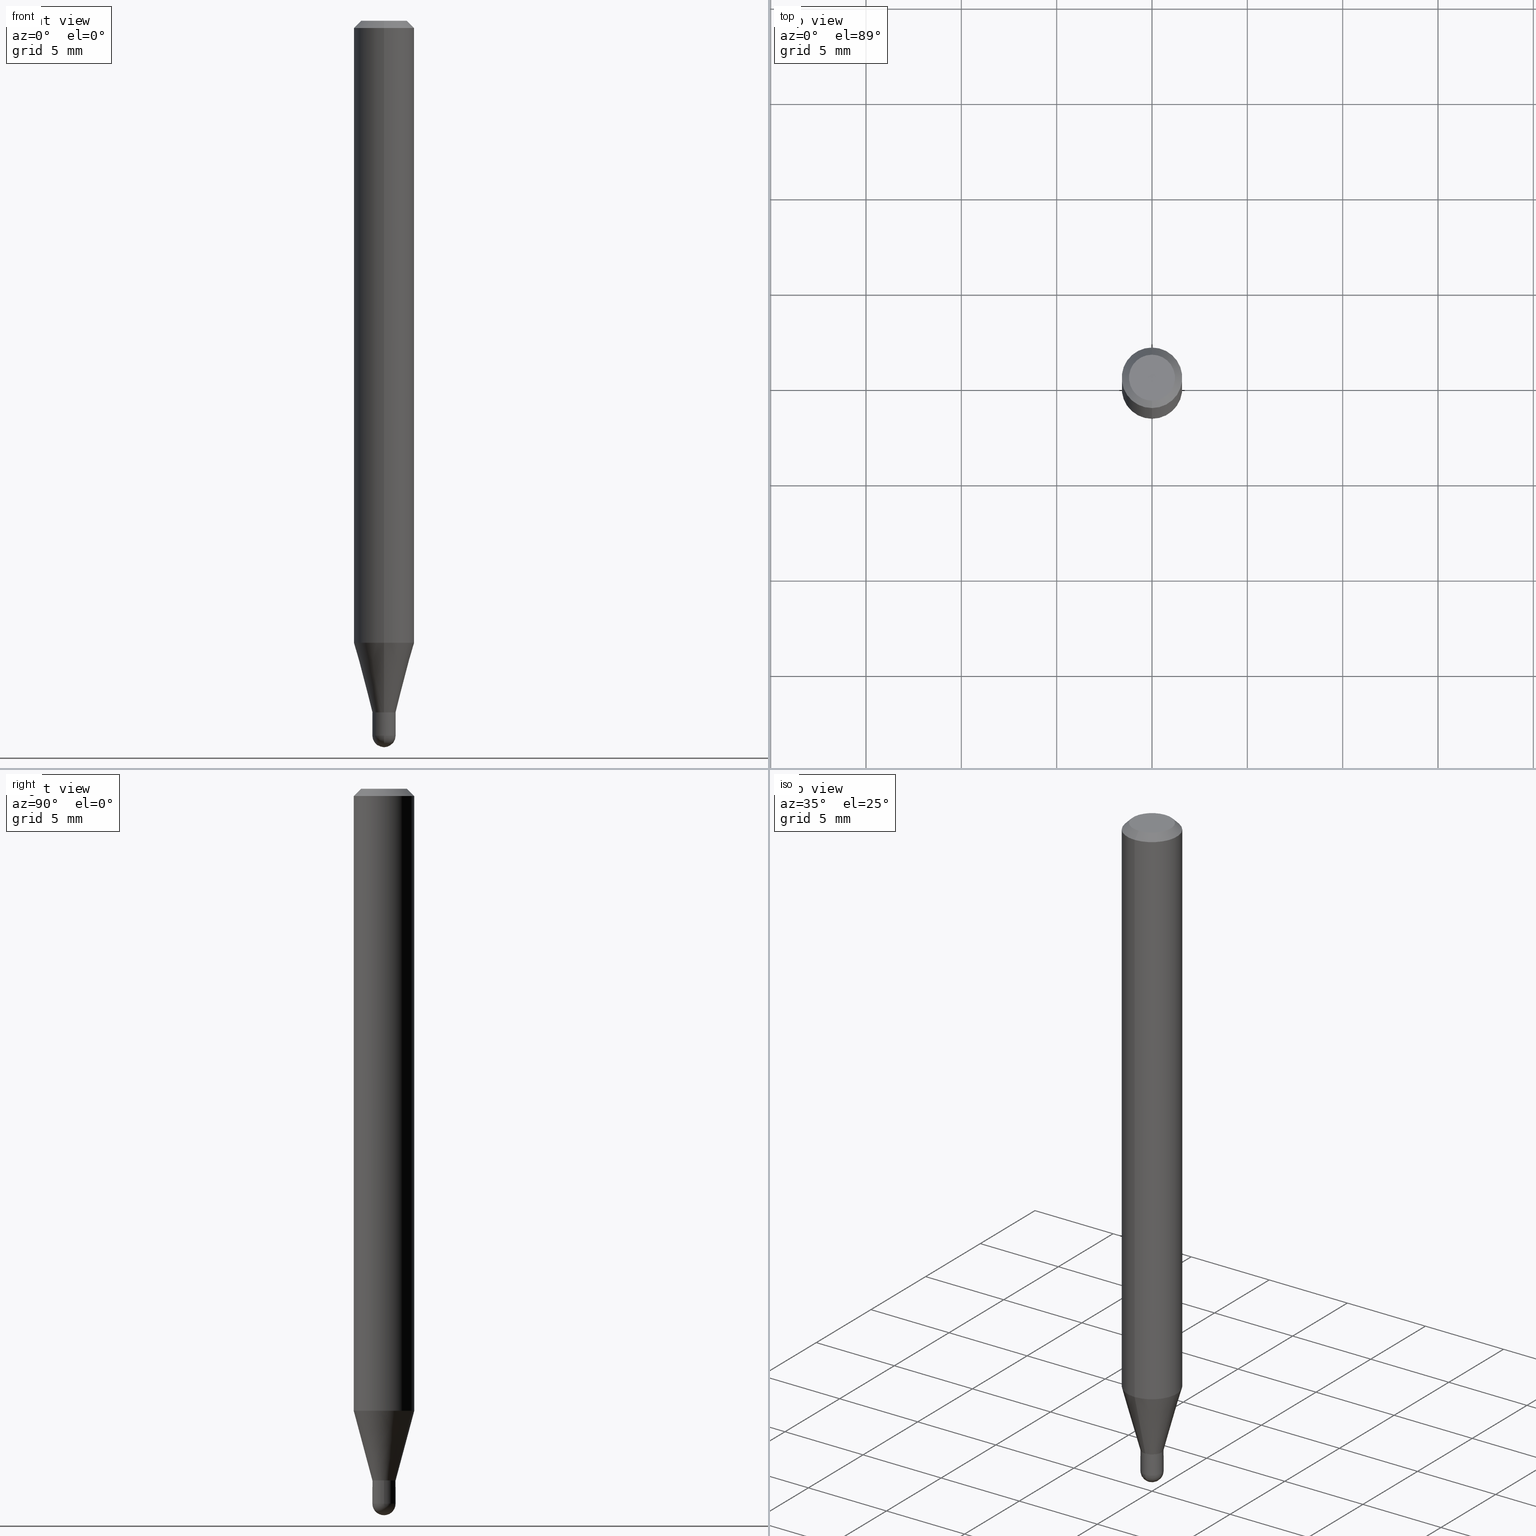
[diagram: canonical four-view strip — front | top / right | iso, engineering-drawing reading convention]
A machine part, canonical four-view strip (front | top / right | iso — engineering-drawing reading convention). The complete STEP part file that produces these views, byte-faithful:
ISO-10303-21;
HEADER;
FILE_DESCRIPTION (( 'STEP AP203' ),
    '1' );
FILE_NAME ('01405.STEP',
    '2024-03-07T20:26:45',
    ( '' ),
    ( '' ),
    'SwSTEP 2.0',
    'SolidWorks 2023',
    '' );
FILE_SCHEMA (( 'CONFIG_CONTROL_DESIGN' ));
ENDSEC;

DATA;
#1 = CARTESIAN_POINT ( 'NONE',  ( -1.640996229255922955E-16, -0.02350000000000497871, -1.428000000000000158 ) ) ;
#2 = DIRECTION ( 'NONE',  ( -2.445464073693033846E-29, 3.491488116041193257E-15, 1.000000000000000000 ) ) ;
#3 = EDGE_CURVE ( 'NONE', #487, #257, #172, .T. ) ;
#4 = DIRECTION ( 'NONE',  ( -6.982962677686265922E-15, -1.000000000000000000, 0.000000000000000000 ) ) ;
#5 = AXIS2_PLACEMENT_3D ( 'NONE', #389, #2, #161 ) ;
#6 = DIRECTION ( 'NONE',  ( 1.000000000000000000, -6.982962677686266711E-15, 4.876176775795935232E-29 ) ) ;
#7 = DIRECTION ( 'NONE',  ( -2.445468806185136877E-29, 3.491481338843145188E-15, 1.000000000000000000 ) ) ;
#8 = EDGE_CURVE ( 'NONE', #179, #99, #484, .T. ) ;
#9 = CARTESIAN_POINT ( 'NONE',  ( -0.02400000000000000397, 1.705302565824240728E-16, -1.180544421661177751E-30 ) ) ;
#10 = DIRECTION ( 'NONE',  ( -4.851104656540964275E-15, -0.7071067811865500152, -0.7071067811865450192 ) ) ;
#11 = DIRECTION ( 'NONE',  ( -6.982962677686265922E-15, -1.000000000000000000, 0.000000000000000000 ) ) ;
#12 = ORIENTED_EDGE ( 'NONE', *, *, #135, .T. ) ;
#13 = CARTESIAN_POINT ( 'NONE',  ( 1.705302565824577720E-16, 0.02399999999999485531, -1.427500000000000213 ) ) ;
#14 = AXIS2_PLACEMENT_3D ( 'NONE', #326, #208, #362 ) ;
#15 = DIRECTION ( 'NONE',  ( 1.000000000000000000, -6.982962677686250144E-15, 0.000000000000000000 ) ) ;
#16 = ORIENTED_EDGE ( 'NONE', *, *, #184, .T. ) ;
#17 = FACE_OUTER_BOUND ( 'NONE', #182, .T. ) ;
#18 = CARTESIAN_POINT ( 'NONE',  ( 3.492122697233653173E-29, -4.985845029706825030E-15, -1.428000000000000158 ) ) ;
#19 = ORIENTED_EDGE ( 'NONE', *, *, #357, .F. ) ;
#20 = CC_DESIGN_PERSON_AND_ORGANIZATION_ASSIGNMENT ( #337, #114, ( #431 ) ) ;
#21 = ADVANCED_FACE ( 'NONE', ( #456 ), #491, .T. ) ;
#22 = LINE ( 'NONE', #289, #33 ) ;
#23 = ORIENTED_EDGE ( 'NONE', *, *, #281, .F. ) ;
#24 = VECTOR ( 'NONE', #313, 39.37007874015748143 ) ;
#25 = VECTOR ( 'NONE', #7, 39.37007874015748143 ) ;
#26 = EDGE_LOOP ( 'NONE', ( #295, #449, #115, #61 ) ) ;
#27 = CALENDAR_DATE ( 2024, 7, 3 ) ;
#28 = DIRECTION ( 'NONE',  ( 1.000000000000000000, -7.105427357601001070E-15, 4.926315508542082329E-29 ) ) ;
#29 = COORDINATED_UNIVERSAL_TIME_OFFSET ( 5, 0, .BEHIND. ) ;
#30 = DIRECTION ( 'NONE',  ( -2.445464073693033846E-29, 3.491488116041193257E-15, 1.000000000000000000 ) ) ;
#31 = LENGTH_MEASURE_WITH_UNIT ( LENGTH_MEASURE( 0.02539999999999999897 ), #294 );
#32 = ORIENTED_EDGE ( 'NONE', *, *, #277, .F. ) ;
#33 = VECTOR ( 'NONE', #10, 39.37007874015748143 ) ;
#34 = AXIS2_PLACEMENT_3D ( 'NONE', #91, #276, #240 ) ;
#35 = CALENDAR_DATE ( 2024, 7, 3 ) ;
#36 = DIRECTION ( 'NONE',  ( -6.982962677686266711E-15, -1.000000000000000000, 0.000000000000000000 ) ) ;
#37 = CARTESIAN_POINT ( 'NONE',  ( 3.607459558835231439E-29, -5.156365608450436393E-15, -1.475999999999999979 ) ) ;
#38 = CARTESIAN_POINT ( 'NONE',  ( 3.840629472727447874E-16, 0.04749999999999999362, -1.747056831868805136E-16 ) ) ;
#39 = DIRECTION ( 'NONE',  ( -2.445464073693033846E-29, 3.491488116041193257E-15, 1.000000000000000000 ) ) ;
#40 = CIRCLE ( 'NONE', #503, 0.02400000000000000050 ) ;
#41 = APPROVAL_STATUS ( 'not_yet_approved' ) ;
#42 = LINE ( 'NONE', #118, #325 ) ;
#43 = CC_DESIGN_DATE_AND_TIME_ASSIGNMENT ( #194, #390, ( #492 ) ) ;
#44 = CONICAL_SURFACE ( 'NONE', #186, 0.06250000000000000000, 0.7853981633974483900 ) ;
#45 = FACE_OUTER_BOUND ( 'NONE', #307, .T. ) ;
#46 = UNCERTAINTY_MEASURE_WITH_UNIT (LENGTH_MEASURE( 1.000000000000000082E-05 ), #70, 'distance_accuracy_value', 'NONE');
#47 = DIRECTION ( 'NONE',  ( -2.445468806185136597E-29, 3.491481338843145583E-15, 1.000000000000000000 ) ) ;
#48 = EDGE_CURVE ( 'NONE', #323, #79, #414, .T. ) ;
#49 = AXIS2_PLACEMENT_3D ( 'NONE', #37, #28, #499 ) ;
#50 = LOCAL_TIME ( 15, 26, 45.00000000000000000, #474 ) ;
#51 = DIRECTION ( 'NONE',  ( -2.445464073693033846E-29, 3.491488116041193257E-15, 1.000000000000000000 ) ) ;
#52 = CARTESIAN_POINT ( 'NONE',  ( 3.316907271900976096E-16, 0.04749999999999999362, -1.702756843494185878E-16 ) ) ;
#53 = ORIENTED_EDGE ( 'NONE', *, *, #334, .T. ) ;
#54 = LINE ( 'NONE', #441, #283 ) ;
#55 = ORIENTED_EDGE ( 'NONE', *, *, #184, .F. ) ;
#56 = AXIS2_PLACEMENT_3D ( 'NONE', #116, #495, #339 ) ;
#57 = AXIS2_PLACEMENT_3D ( 'NONE', #18, #103, #11 ) ;
#58 = AXIS2_PLACEMENT_3D ( 'NONE', #80, #90, #4 ) ;
#59 = VERTEX_POINT ( 'NONE', #304 ) ;
#60 = CARTESIAN_POINT ( 'NONE',  ( 0.02400000000000000050, -5.153426456132482850E-15, -1.428000000000000158 ) ) ;
#61 = ORIENTED_EDGE ( 'NONE', *, *, #296, .F. ) ;
#62 = EDGE_CURVE ( 'NONE', #485, #59, #219, .T. ) ;
#63 = CARTESIAN_POINT ( 'NONE',  ( 3.492129455232375114E-29, -4.985835351868012196E-15, -1.428000000000000158 ) ) ;
#64 = DIRECTION ( 'NONE',  ( -2.445468806185136597E-29, 3.491481338843145583E-15, 1.000000000000000000 ) ) ;
#65 = ORIENTED_EDGE ( 'NONE', *, *, #448, .F. ) ;
#66 = MECHANICAL_CONTEXT ( 'NONE', #345, 'mechanical' ) ;
#67 = APPROVAL ( #378, 'UNSPECIFIED' ) ;
#68 = CLOSED_SHELL ( 'NONE', ( #247, #131, #83, #243, #263 ) ) ;
#69 = EDGE_LOOP ( 'NONE', ( #157, #128, #446, #139, #412 ) ) ;
#70 =( CONVERSION_BASED_UNIT ( 'INCH', #31 ) LENGTH_UNIT ( ) NAMED_UNIT ( #321 ) );
#71 = EDGE_CURVE ( 'NONE', #335, #99, #458, .T. ) ;
#72 = CARTESIAN_POINT ( 'NONE',  ( 1.705302565824607055E-16, 0.02399999999999493164, -1.475999999999999979 ) ) ;
#73 = SECURITY_CLASSIFICATION_LEVEL ( 'unclassified' ) ;
#74 = VERTEX_POINT ( 'NONE', #78 ) ;
#75 = ORIENTED_EDGE ( 'NONE', *, *, #108, .F. ) ;
#76 = AXIS2_PLACEMENT_3D ( 'NONE', #396, #47, #6 ) ;
#77 = CIRCLE ( 'NONE', #494, 0.02400000000000000397 ) ;
#78 = CARTESIAN_POINT ( 'NONE',  ( 4.440892098500941706E-16, 0.06249999999999995143, -0.01500000000000022669 ) ) ;
#79 = VERTEX_POINT ( 'NONE', #425 ) ;
#80 = CARTESIAN_POINT ( 'NONE',  ( 3.607459558835231439E-29, -5.156365608450436393E-15, -1.475999999999999979 ) ) ;
#81 = APPROVAL_ROLE ( '' ) ;
#82 = CARTESIAN_POINT ( 'NONE',  ( 3.073097332162762918E-16, 0.02399999999999493164, -1.428000000000000158 ) ) ;
#83 = ADVANCED_FACE ( 'NONE', ( #346 ), #510, .F. ) ;
#84 = CARTESIAN_POINT ( 'NONE',  ( 3.492122697233653173E-29, -4.985845029706825030E-15, -1.428000000000000158 ) ) ;
#85 = CIRCLE ( 'NONE', #56, 0.06250000000000000000 ) ;
#86 = CIRCLE ( 'NONE', #300, 0.04749999999999999362 ) ;
#87 = DIRECTION ( 'NONE',  ( -2.445464073693033846E-29, 3.491488116041193651E-15, 1.000000000000000000 ) ) ;
#88 = ADVANCED_FACE ( 'NONE', ( #309 ), #418, .F. ) ;
#89 = CARTESIAN_POINT ( 'NONE',  ( -4.364351673553916201E-16, -0.06250000000000000000, 2.182180072525745786E-16 ) ) ;
#90 = DIRECTION ( 'NONE',  ( 1.000000000000000000, -6.982962677686265922E-15, 4.883557194083111780E-29 ) ) ;
#91 = CARTESIAN_POINT ( 'NONE',  ( 3.607459558835231439E-29, -5.156365608450436393E-15, -1.475999999999999979 ) ) ;
#92 = ORIENTED_EDGE ( 'NONE', *, *, #281, .T. ) ;
#93 = CIRCLE ( 'NONE', #422, 0.02400000000000000397 ) ;
#94 = CYLINDRICAL_SURFACE ( 'NONE', #398, 0.02400000000000000397 ) ;
#95 = EDGE_CURVE ( 'NONE', #107, #493, #259, .T. ) ;
#96 = DIRECTION ( 'NONE',  ( -6.982962677686265922E-15, -1.000000000000000000, 3.491488116041193257E-15 ) ) ;
#97 = ORIENTED_EDGE ( 'NONE', *, *, #150, .F. ) ;
#98 = DIRECTION ( 'NONE',  ( -6.982962677686265922E-15, -1.000000000000000000, 0.000000000000000000 ) ) ;
#99 = VERTEX_POINT ( 'NONE', #72 ) ;
#100 = CONICAL_SURFACE ( 'NONE', #400, 0.02399999999999991723, 0.2617993877991579010 ) ;
#101 = DIRECTION ( 'NONE',  ( -2.445468806185136597E-29, 3.491481338843145583E-15, 1.000000000000000000 ) ) ;
#102 = EDGE_LOOP ( 'NONE', ( #212, #53, #143, #117 ) ) ;
#103 = DIRECTION ( 'NONE',  ( -2.445464073693033846E-29, 3.491488116041193257E-15, 1.000000000000000000 ) ) ;
#104 = PERSON ( 'UNSPECIFIED', 'UNSPECIFIED', 'UNSPECIFIED', ('UNSPECIFIED'), ('UNSPECIFIED'), ('UNSPECIFIED') ) ;
#105 = EDGE_LOOP ( 'NONE', ( #375, #12, #191, #379 ) ) ;
#106 = EDGE_CURVE ( 'NONE', #59, #485, #199, .T. ) ;
#107 = VERTEX_POINT ( 'NONE', #1 ) ;
#108 = EDGE_CURVE ( 'NONE', #310, #508, #86, .T. ) ;
#109 = APPROVAL_ROLE ( '' ) ;
#110 = AXIS2_PLACEMENT_3D ( 'NONE', #151, #465, #298 ) ;
#111 = CARTESIAN_POINT ( 'NONE',  ( 3.492122697233653173E-29, -4.985845029706825030E-15, -1.428000000000000158 ) ) ;
#112 = COORDINATED_UNIVERSAL_TIME_OFFSET ( 5, 0, .BEHIND. ) ;
#113 = CARTESIAN_POINT ( 'NONE',  ( 3.490899965196806411E-29, -4.984099285648804176E-15, -1.427500000000000213 ) ) ;
#114 = PERSON_AND_ORGANIZATION_ROLE ( 'design_owner' ) ;
#115 = ORIENTED_EDGE ( 'NONE', *, *, #511, .T. ) ;
#116 = CARTESIAN_POINT ( 'NONE',  ( 3.668196110539553397E-31, -5.237232174061793509E-17, -0.01500000000000000812 ) ) ;
#117 = ORIENTED_EDGE ( 'NONE', *, *, #349, .F. ) ;
#118 = CARTESIAN_POINT ( 'NONE',  ( -1.640996229255922955E-16, -0.02350000000000497871, -1.428000000000000158 ) ) ;
#119 = DIRECTION ( 'NONE',  ( -2.445464073693033846E-29, 3.491488116041193257E-15, 1.000000000000000000 ) ) ;
#120 = CALENDAR_DATE ( 2024, 7, 3 ) ;
#121 = CARTESIAN_POINT ( 'NONE',  ( -0.02400000000000000397, -4.899100647417823327E-15, -1.475999999999999979 ) ) ;
#122 = DIRECTION ( 'NONE',  ( 2.445464073693033286E-29, -3.491488116041193651E-15, -1.000000000000000000 ) ) ;
#123 = CC_DESIGN_APPROVAL ( #336, ( #141 ) ) ;
#124 = AXIS2_PLACEMENT_3D ( 'NONE', #205, #280, #235 ) ;
#125 = CYLINDRICAL_SURFACE ( 'NONE', #76, 0.02400000000000000397 ) ;
#126 = DIRECTION ( 'NONE',  ( -2.445464073693033846E-29, 3.491488116041193257E-15, 1.000000000000000000 ) ) ;
#127 = DIRECTION ( 'NONE',  ( -6.982962677686266711E-15, -1.000000000000000000, 3.491488116041193257E-15 ) ) ;
#128 = ORIENTED_EDGE ( 'NONE', *, *, #150, .T. ) ;
#129 = DIRECTION ( 'NONE',  ( -6.982962677686266711E-15, -1.000000000000000000, 3.491488116041193257E-15 ) ) ;
#130 = ORIENTED_EDGE ( 'NONE', *, *, #386, .F. ) ;
#131 = ADVANCED_FACE ( 'NONE', ( #167 ), #432, .T. ) ;
#132 = CARTESIAN_POINT ( 'NONE',  ( 3.609511957929261635E-29, -5.153426456132482850E-15, -1.475999999999999979 ) ) ;
#133 = ORIENTED_EDGE ( 'NONE', *, *, #448, .T. ) ;
#134 = AXIS2_PLACEMENT_3D ( 'NONE', #168, #39, #399 ) ;
#135 = EDGE_CURVE ( 'NONE', #323, #485, #282, .T. ) ;
#136 = ORIENTED_EDGE ( 'NONE', *, *, #506, .T. ) ;
#137 = ORIENTED_EDGE ( 'NONE', *, *, #462, .T. ) ;
#138 = DATE_AND_TIME ( #35, #384 ) ;
#139 = ORIENTED_EDGE ( 'NONE', *, *, #462, .F. ) ;
#140 = EDGE_CURVE ( 'NONE', #79, #253, #164, .T. ) ;
#141 = PRODUCT_DEFINITION_FORMATION_WITH_SPECIFIED_SOURCE ( 'ANY', '', #431, .NOT_KNOWN. ) ;
#142 = AXIS2_PLACEMENT_3D ( 'NONE', #84, #394, #311 ) ;
#143 = ORIENTED_EDGE ( 'NONE', *, *, #511, .F. ) ;
#144 = PERSON_AND_ORGANIZATION ( #104, #376 ) ;
#145 = CC_DESIGN_PERSON_AND_ORGANIZATION_ASSIGNMENT ( #144, #505, ( #492 ) ) ;
#146 = DIRECTION ( 'NONE',  ( -2.445468806185136597E-29, 3.491481338843145583E-15, 1.000000000000000000 ) ) ;
#147 = APPLICATION_CONTEXT ( 'configuration controlled 3d designs of mechanical parts and assemblies' ) ;
#148 =( NAMED_UNIT ( * ) SI_UNIT ( $, .STERADIAN. ) SOLID_ANGLE_UNIT ( ) );
#149 = VECTOR ( 'NONE', #236, 39.37007874015748143 ) ;
#150 = EDGE_CURVE ( 'NONE', #368, #257, #353, .T. ) ;
#151 = CARTESIAN_POINT ( 'NONE',  ( 3.492122697233653173E-29, -4.985845029706825030E-15, -1.428000000000000158 ) ) ;
#152 = SHAPE_DEFINITION_REPRESENTATION ( #163, #417 ) ;
#153 = DIRECTION ( 'NONE',  ( 2.438088387897960049E-29, -3.491481338843145188E-15, -1.000000000000000000 ) ) ;
#154 = CIRCLE ( 'NONE', #14, 0.02349999999999999312 ) ;
#155 = AXIS2_PLACEMENT_3D ( 'NONE', #305, #146, #267 ) ;
#156 = PRODUCT_DEFINITION ( 'UNKNOWN', '', #141, #469 ) ;
#157 = ORIENTED_EDGE ( 'NONE', *, *, #268, .T. ) ;
#158 = CARTESIAN_POINT ( 'NONE',  ( 3.140748744646054183E-29, -4.484174204547925592E-15, -1.284316043908602989 ) ) ;
#159 = CARTESIAN_POINT ( 'NONE',  ( 0.02400000000000000397, -5.237222008264717388E-15, -1.475999999999999979 ) ) ;
#160 = DATE_AND_TIME ( #426, #227 ) ;
#161 = DIRECTION ( 'NONE',  ( -6.982962677686265922E-15, -1.000000000000000000, 3.483106191921935554E-15 ) ) ;
#162 = ADVANCED_FACE ( 'NONE', ( #272 ), #315, .F. ) ;
#163 = PRODUCT_DEFINITION_SHAPE ( 'NONE', 'NONE',  #156 ) ;
#164 = LINE ( 'NONE', #231, #203 ) ;
#165 = MANIFOLD_SOLID_BREP ( 'Body-Move/Copy2[2]', #377 ) ;
#166 = DIRECTION ( 'NONE',  ( -4.937700262164695559E-15, -0.7071067811865662245, 0.7071067811865289210 ) ) ;
#167 = FACE_OUTER_BOUND ( 'NONE', #290, .T. ) ;
#168 = CARTESIAN_POINT ( 'NONE',  ( 2.166680600703005880E-46, -3.093457659014917568E-32, -8.859997674923836270E-18 ) ) ;
#169 = CYLINDRICAL_SURFACE ( 'NONE', #299, 0.02399999999999991723 ) ;
#170 = ORIENTED_EDGE ( 'NONE', *, *, #8, .F. ) ;
#171 = VECTOR ( 'NONE', #206, 39.37007874015748143 ) ;
#172 = CIRCLE ( 'NONE', #284, 0.02400000000000000050 ) ;
#173 = DIRECTION ( 'NONE',  ( -2.445464073693033846E-29, 3.491488116041193257E-15, 1.000000000000000000 ) ) ;
#174 = CARTESIAN_POINT ( 'NONE',  ( 3.609511957929261635E-29, -5.153426456132482850E-15, -1.475999999999999979 ) ) ;
#175 = EDGE_LOOP ( 'NONE', ( #209, #301, #23, #471 ) ) ;
#176 = DIRECTION ( 'NONE',  ( -2.445464073693033846E-29, 3.491488116041193257E-15, 1.000000000000000000 ) ) ;
#177 = EDGE_LOOP ( 'NONE', ( #373, #401, #248, #454 ) ) ;
#178 = MANIFOLD_SOLID_BREP ( 'Body-Move/Copy2[1]', #68 ) ;
#179 = VERTEX_POINT ( 'NONE', #159 ) ;
#180 = CARTESIAN_POINT ( 'NONE',  ( 0.000000000000000000, 0.000000000000000000, 0.000000000000000000 ) ) ;
#181 = CIRCLE ( 'NONE', #322, 0.02400000000000017397 ) ;
#182 = EDGE_LOOP ( 'NONE', ( #197, #136, #424, #196 ) ) ;
#183 = DATE_AND_TIME ( #27, #266 ) ;
#184 = EDGE_CURVE ( 'NONE', #74, #330, #250, .T. ) ;
#185 = DIRECTION ( 'NONE',  ( -2.445464073693033846E-29, 3.491488116041193257E-15, 1.000000000000000000 ) ) ;
#186 = AXIS2_PLACEMENT_3D ( 'NONE', #360, #351, #388 ) ;
#187 = PERSON_AND_ORGANIZATION_ROLE ( 'creator' ) ;
#188 = VERTEX_POINT ( 'NONE', #430 ) ;
#189 =( NAMED_UNIT ( * ) PLANE_ANGLE_UNIT ( ) SI_UNIT ( $, .RADIAN. ) );
#190 = AXIS2_PLACEMENT_3D ( 'NONE', #113, #385, #36 ) ;
#191 = ORIENTED_EDGE ( 'NONE', *, *, #62, .T. ) ;
#192 = APPROVAL_DATE_TIME ( #183, #67 ) ;
#193 = ORIENTED_EDGE ( 'NONE', *, *, #48, .T. ) ;
#194 = DATE_AND_TIME ( #120, #50 ) ;
#195 = ADVANCED_FACE ( 'NONE', ( #359 ), #344, .T. ) ;
#196 = ORIENTED_EDGE ( 'NONE', *, *, #140, .F. ) ;
#197 = ORIENTED_EDGE ( 'NONE', *, *, #204, .T. ) ;
#198 = DIRECTION ( 'NONE',  ( -2.445464073693033846E-29, 3.491488116041193257E-15, 1.000000000000000000 ) ) ;
#199 = CIRCLE ( 'NONE', #331, 0.02399999999999992070 ) ;
#200 = DIRECTION ( 'NONE',  ( -2.445464073693033846E-29, 3.491488116041193651E-15, 1.000000000000000000 ) ) ;
#201 = FACE_OUTER_BOUND ( 'NONE', #175, .T. ) ;
#202 = FACE_OUTER_BOUND ( 'NONE', #69, .T. ) ;
#203 = VECTOR ( 'NONE', #361, 39.37007874015748854 ) ;
#204 = EDGE_CURVE ( 'NONE', #79, #323, #407, .T. ) ;
#205 = CARTESIAN_POINT ( 'NONE',  ( 3.492122697233653173E-29, -4.985845029706825030E-15, -1.428000000000000158 ) ) ;
#206 = DIRECTION ( 'NONE',  ( -2.445464073693033846E-29, 3.491488116041193651E-15, 1.000000000000000000 ) ) ;
#207 = APPROVAL ( #41, 'UNSPECIFIED' ) ;
#208 = DIRECTION ( 'NONE',  ( -2.445464073693033846E-29, 3.491488116041193257E-15, 1.000000000000000000 ) ) ;
#209 = ORIENTED_EDGE ( 'NONE', *, *, #71, .F. ) ;
#210 = APPROVAL_PERSON_ORGANIZATION ( #509, #207, #81 ) ;
#211 = CARTESIAN_POINT ( 'NONE',  ( -1.675911042644698153E-16, -0.02399999999999991723, 8.379571478498835102E-17 ) ) ;
#212 = ORIENTED_EDGE ( 'NONE', *, *, #374, .T. ) ;
#213 = DIRECTION ( 'NONE',  ( -6.982962677686266711E-15, -1.000000000000000000, 0.000000000000000000 ) ) ;
#214 = VERTEX_POINT ( 'NONE', #395 ) ;
#215 = CARTESIAN_POINT ( 'NONE',  ( 3.492122697233653173E-29, -4.985845029706825030E-15, -1.428000000000000158 ) ) ;
#216 = ORIENTED_EDGE ( 'NONE', *, *, #95, .F. ) ;
#217 =( GEOMETRIC_REPRESENTATION_CONTEXT ( 3 ) GLOBAL_UNCERTAINTY_ASSIGNED_CONTEXT ( ( #46 ) ) GLOBAL_UNIT_ASSIGNED_CONTEXT ( ( #70, #189, #148 ) ) REPRESENTATION_CONTEXT ( 'NONE', 'WORKASPACE' ) );
#218 = PERSON_AND_ORGANIZATION ( #104, #376 ) ;
#219 = CIRCLE ( 'NONE', #190, 0.02399999999999992070 ) ;
#220 = EDGE_CURVE ( 'NONE', #508, #310, #476, .T. ) ;
#221 = CARTESIAN_POINT ( 'NONE',  ( 3.492122697233653173E-29, -4.985845029706825030E-15, -1.428000000000000158 ) ) ;
#222 = APPROVAL_DATE_TIME ( #415, #336 ) ;
#223 = CARTESIAN_POINT ( 'NONE',  ( 3.490899965196806411E-29, -4.984099285648804176E-15, -1.427500000000000213 ) ) ;
#224 = CARTESIAN_POINT ( 'NONE',  ( 3.492122697233653173E-29, -4.985845029706825030E-15, -1.428000000000000158 ) ) ;
#225 = ADVANCED_FACE ( 'NONE', ( #45 ), #479, .T. ) ;
#226 = PERSON_AND_ORGANIZATION_ROLE ( 'creator' ) ;
#227 = LOCAL_TIME ( 15, 26, 45.00000000000000000, #271 ) ;
#228 = ORIENTED_EDGE ( 'NONE', *, *, #334, .F. ) ;
#229 = ORIENTED_EDGE ( 'NONE', *, *, #306, .F. ) ;
#230 = ORIENTED_EDGE ( 'NONE', *, *, #277, .T. ) ;
#231 = CARTESIAN_POINT ( 'NONE',  ( -1.675911042644348836E-16, -0.02400000000000490283, -1.428000000000000158 ) ) ;
#232 = APPROVAL_DATE_TIME ( #160, #207 ) ;
#233 = FACE_OUTER_BOUND ( 'NONE', #105, .T. ) ;
#234 = VECTOR ( 'NONE', #314, 39.37007874015748143 ) ;
#235 = DIRECTION ( 'NONE',  ( -6.982962677686266711E-15, -1.000000000000000000, 0.000000000000000000 ) ) ;
#236 = DIRECTION ( 'NONE',  ( -2.445464073693033846E-29, 3.491488116041193651E-15, 1.000000000000000000 ) ) ;
#237 = DIRECTION ( 'NONE',  ( 6.982962677686265922E-15, 1.000000000000000000, -3.491488116041193651E-15 ) ) ;
#238 = AXIS2_PLACEMENT_3D ( 'NONE', #158, #126, #472 ) ;
#239 = DIRECTION ( 'NONE',  ( -2.445464073693033846E-29, 3.491488116041193257E-15, 1.000000000000000000 ) ) ;
#240 = DIRECTION ( 'NONE',  ( -6.982962677686265922E-15, -1.000000000000000000, 0.000000000000000000 ) ) ;
#241 = DIRECTION ( 'NONE',  ( 1.000000000000000000, -6.982962677686266711E-15, 4.876176775795935232E-29 ) ) ;
#242 = DIRECTION ( 'NONE',  ( 5.024295867788211484E-15, 0.7071067811865709984, 0.7071067811865239250 ) ) ;
#243 = ADVANCED_FACE ( 'NONE', ( #201 ), #435, .T. ) ;
#244 = ORIENTED_EDGE ( 'NONE', *, *, #349, .T. ) ;
#245 = DIRECTION ( 'NONE',  ( 1.000000000000000000, -6.982962677686251722E-15, 0.000000000000000000 ) ) ;
#246 = FACE_OUTER_BOUND ( 'NONE', #255, .T. ) ;
#247 = ADVANCED_FACE ( 'NONE', ( #202 ), #125, .T. ) ;
#248 = ORIENTED_EDGE ( 'NONE', *, *, #402, .T. ) ;
#249 = CC_DESIGN_SECURITY_CLASSIFICATION ( #492, ( #141 ) ) ;
#250 = CIRCLE ( 'NONE', #5, 0.06250000000000000000 ) ;
#251 = CARTESIAN_POINT ( 'NONE',  ( 3.607459558835231439E-29, -5.156365608450436393E-15, -1.475999999999999979 ) ) ;
#252 = DIRECTION ( 'NONE',  ( 1.000000000000000000, -6.982962677686250144E-15, 0.000000000000000000 ) ) ;
#253 = VERTEX_POINT ( 'NONE', #319 ) ;
#254 = CARTESIAN_POINT ( 'NONE',  ( 4.364351673553919652E-16, 0.06249999999999995143, -0.01500000000000022669 ) ) ;
#255 = EDGE_LOOP ( 'NONE', ( #97, #92, #230, #137, #338 ) ) ;
#256 = LINE ( 'NONE', #423, #428 ) ;
#257 = VERTEX_POINT ( 'NONE', #445 ) ;
#258 = LOCAL_TIME ( 15, 26, 45.00000000000000000, #112 ) ;
#259 = CIRCLE ( 'NONE', #274, 0.02349999999999999312 ) ;
#260 = DIRECTION ( 'NONE',  ( -6.982962677686265922E-15, -1.000000000000000000, 0.000000000000000000 ) ) ;
#261 = PERSON_AND_ORGANIZATION ( #104, #376 ) ;
#262 = CALENDAR_DATE ( 2024, 7, 3 ) ;
#263 = ADVANCED_FACE ( 'NONE', ( #246 ), #94, .T. ) ;
#264 = CARTESIAN_POINT ( 'NONE',  ( 1.675911042645052894E-16, 0.02399999999999501490, -1.428000000000000158 ) ) ;
#265 = AXIS2_PLACEMENT_3D ( 'NONE', #111, #119, #507 ) ;
#266 = LOCAL_TIME ( 15, 26, 45.00000000000000000, #498 ) ;
#267 = DIRECTION ( 'NONE',  ( 1.000000000000000000, -6.982962677686250144E-15, 0.000000000000000000 ) ) ;
#268 = EDGE_CURVE ( 'NONE', #99, #368, #93, .T. ) ;
#269 = ORIENTED_EDGE ( 'NONE', *, *, #296, .T. ) ;
#270 = ADVANCED_FACE ( 'NONE', ( #363 ), #393, .T. ) ;
#271 = COORDINATED_UNIVERSAL_TIME_OFFSET ( 5, 0, .BEHIND. ) ;
#272 = FACE_OUTER_BOUND ( 'NONE', #341, .T. ) ;
#273 = AXIS2_PLACEMENT_3D ( 'NONE', #366, #285, #96 ) ;
#274 = AXIS2_PLACEMENT_3D ( 'NONE', #221, #185, #260 ) ;
#275 = FACE_OUTER_BOUND ( 'NONE', #408, .T. ) ;
#276 = DIRECTION ( 'NONE',  ( 1.000000000000000000, -6.982962677686265922E-15, 4.883557194083111780E-29 ) ) ;
#277 = EDGE_CURVE ( 'NONE', #214, #179, #466, .T. ) ;
#278 = AXIS2_PLACEMENT_3D ( 'NONE', #434, #239, #392 ) ;
#279 = CYLINDRICAL_SURFACE ( 'NONE', #278, 0.02399999999999991723 ) ;
#280 = DIRECTION ( 'NONE',  ( -2.445464073693033846E-29, 3.491488116041193257E-15, 1.000000000000000000 ) ) ;
#281 = EDGE_CURVE ( 'NONE', #368, #214, #77, .T. ) ;
#282 = LINE ( 'NONE', #482, #429 ) ;
#283 = VECTOR ( 'NONE', #242, 39.37007874015748854 ) ;
#284 = AXIS2_PLACEMENT_3D ( 'NONE', #348, #504, #387 ) ;
#285 = DIRECTION ( 'NONE',  ( -2.445464073693033846E-29, 3.491488116041193257E-15, 1.000000000000000000 ) ) ;
#286 = EDGE_LOOP ( 'NONE', ( #413, #406, #328, #229 ) ) ;
#287 = CARTESIAN_POINT ( 'NONE',  ( 3.668196110539553397E-31, -5.237232174061793509E-17, -0.01500000000000000812 ) ) ;
#288 = ORIENTED_EDGE ( 'NONE', *, *, #480, .F. ) ;
#289 = CARTESIAN_POINT ( 'NONE',  ( -4.287811248607203282E-16, -0.06250000000000005551, -0.01499999999999979128 ) ) ;
#290 = EDGE_LOOP ( 'NONE', ( #288, #365, #170, #32 ) ) ;
#291 = CC_DESIGN_APPROVAL ( #207, ( #492 ) ) ;
#292 = DIRECTION ( 'NONE',  ( 6.982962677686265922E-15, 1.000000000000000000, -3.483106191921935554E-15 ) ) ;
#293 = ORIENTED_EDGE ( 'NONE', *, *, #357, .T. ) ;
#294 =( LENGTH_UNIT ( ) NAMED_UNIT ( * ) SI_UNIT ( $, .METRE. ) );
#295 = ORIENTED_EDGE ( 'NONE', *, *, #220, .F. ) ;
#296 = EDGE_CURVE ( 'NONE', #310, #74, #451, .T. ) ;
#297 = APPROVAL_STATUS ( 'not_yet_approved' ) ;
#298 = DIRECTION ( 'NONE',  ( -6.982962677686265922E-15, -1.000000000000000000, 3.491488116041193651E-15 ) ) ;
#299 = AXIS2_PLACEMENT_3D ( 'NONE', #329, #173, #129 ) ;
#300 = AXIS2_PLACEMENT_3D ( 'NONE', #356, #475, #127 ) ;
#301 = ORIENTED_EDGE ( 'NONE', *, *, #480, .T. ) ;
#302 = APPROVAL_ROLE ( '' ) ;
#303 = ADVANCED_FACE ( 'NONE', ( #275 ), #44, .T. ) ;
#304 = CARTESIAN_POINT ( 'NONE',  ( -1.675911042644355245E-16, -0.02400000000000498956, -1.427500000000000213 ) ) ;
#305 = CARTESIAN_POINT ( 'NONE',  ( 3.609511957929261635E-29, -5.153426456132482850E-15, -1.475999999999999979 ) ) ;
#306 = EDGE_CURVE ( 'NONE', #107, #59, #42, .T. ) ;
#307 = EDGE_LOOP ( 'NONE', ( #228, #293, #244, #55 ) ) ;
#308 = DIRECTION ( 'NONE',  ( -6.982962677686265922E-15, -1.000000000000000000, 4.370956789862821150E-15 ) ) ;
#309 = FACE_OUTER_BOUND ( 'NONE', #443, .T. ) ;
#310 = VERTEX_POINT ( 'NONE', #38 ) ;
#311 = DIRECTION ( 'NONE',  ( -6.982962677686266711E-15, -1.000000000000000000, 0.000000000000000000 ) ) ;
#312 = PRODUCT_RELATED_PRODUCT_CATEGORY ( 'detail', '', ( #431 ) ) ;
#313 = DIRECTION ( 'NONE',  ( -2.445468806185136877E-29, 3.491481338843145188E-15, 1.000000000000000000 ) ) ;
#314 = DIRECTION ( 'NONE',  ( 4.937700262164548042E-15, 0.7071067811865451302, -0.7071067811865499042 ) ) ;
#315 = PLANE ( 'NONE',  #358 ) ;
#316 = AXIS2_PLACEMENT_3D ( 'NONE', #397, #51, #308 ) ;
#317 = AXIS2_PLACEMENT_3D ( 'NONE', #477, #198, #473 ) ;
#318 = CARTESIAN_POINT ( 'NONE',  ( 3.665124610636659881E-29, -5.241630736741649279E-15, -1.500000000000000222 ) ) ;
#319 = CARTESIAN_POINT ( 'NONE',  ( -4.364351673553603615E-16, -0.06250000000000449640, -1.284316043908602767 ) ) ;
#320 = CC_DESIGN_PERSON_AND_ORGANIZATION_ASSIGNMENT ( #380, #187, ( #141 ) ) ;
#321 = DIMENSIONAL_EXPONENTS ( 1.000000000000000000, 0.000000000000000000, 0.000000000000000000, 0.000000000000000000, 0.000000000000000000, 0.000000000000000000, 0.000000000000000000 ) ;
#322 = AXIS2_PLACEMENT_3D ( 'NONE', #251, #444, #98 ) ;
#323 = VERTEX_POINT ( 'NONE', #82 ) ;
#324 = CYLINDRICAL_SURFACE ( 'NONE', #273, 0.06250000000000000000 ) ;
#325 = VECTOR ( 'NONE', #166, 39.37007874015748143 ) ;
#326 = CARTESIAN_POINT ( 'NONE',  ( 3.492122697233653173E-29, -4.985845029706825030E-15, -1.428000000000000158 ) ) ;
#327 = CIRCLE ( 'NONE', #238, 0.06250000000000000000 ) ;
#328 = ORIENTED_EDGE ( 'NONE', *, *, #106, .F. ) ;
#329 = CARTESIAN_POINT ( 'NONE',  ( 0.000000000000000000, 0.000000000000000000, 0.000000000000000000 ) ) ;
#330 = VERTEX_POINT ( 'NONE', #512 ) ;
#331 = AXIS2_PLACEMENT_3D ( 'NONE', #223, #30, #355 ) ;
#332 = APPROVAL_PERSON_ORGANIZATION ( #459, #336, #109 ) ;
#333 = DIRECTION ( 'NONE',  ( 0.000000000000000000, 0.000000000000000000, 1.000000000000000000 ) ) ;
#334 = EDGE_CURVE ( 'NONE', #188, #74, #478, .T. ) ;
#335 = VERTEX_POINT ( 'NONE', #318 ) ;
#336 = APPROVAL ( #297, 'UNSPECIFIED' ) ;
#337 = PERSON_AND_ORGANIZATION ( #104, #376 ) ;
#338 = ORIENTED_EDGE ( 'NONE', *, *, #436, .F. ) ;
#339 = DIRECTION ( 'NONE',  ( -6.982962677686265922E-15, -1.000000000000000000, 3.483106191921935554E-15 ) ) ;
#340 = CIRCLE ( 'NONE', #316, 0.06250000000000000000 ) ;
#341 = EDGE_LOOP ( 'NONE', ( #470, #452 ) ) ;
#342 = AXIS2_PLACEMENT_3D ( 'NONE', #180, #333, #455 ) ;
#343 = DIRECTION ( 'NONE',  ( 1.839019923739652775E-15, 0.2588190451025323413, 0.9659258262890650926 ) ) ;
#344 = CONICAL_SURFACE ( 'NONE', #124, 0.02399999999999991723, 0.2617993877991579010 ) ;
#345 = APPLICATION_CONTEXT ( 'configuration controlled 3d designs of mechanical parts and assemblies' ) ;
#346 = FACE_OUTER_BOUND ( 'NONE', #496, .T. ) ;
#347 = APPLICATION_PROTOCOL_DEFINITION ( 'international standard', 'config_control_design', 1994, #345 ) ;
#348 = CARTESIAN_POINT ( 'NONE',  ( 3.492129455232375114E-29, -4.985835351868012196E-15, -1.428000000000000158 ) ) ;
#349 = EDGE_CURVE ( 'NONE', #253, #330, #354, .T. ) ;
#350 = DIRECTION ( 'NONE',  ( -6.982962677686266711E-15, -1.000000000000000000, 0.000000000000000000 ) ) ;
#351 = DIRECTION ( 'NONE',  ( 2.445464073693033846E-29, -3.491488116041193257E-15, -1.000000000000000000 ) ) ;
#352 = CC_DESIGN_DATE_AND_TIME_ASSIGNMENT ( #138, #501, ( #156 ) ) ;
#353 = LINE ( 'NONE', #9, #24 ) ;
#354 = LINE ( 'NONE', #89, #149 ) ;
#355 = DIRECTION ( 'NONE',  ( -6.982962677686266711E-15, -1.000000000000000000, 0.000000000000000000 ) ) ;
#356 = CARTESIAN_POINT ( 'NONE',  ( 2.166680600703005880E-46, -3.093457659014917568E-32, -8.859997674923836270E-18 ) ) ;
#357 = EDGE_CURVE ( 'NONE', #188, #253, #327, .T. ) ;
#358 = AXIS2_PLACEMENT_3D ( 'NONE', #52, #122, #237 ) ;
#359 = FACE_OUTER_BOUND ( 'NONE', #463, .T. ) ;
#360 = CARTESIAN_POINT ( 'NONE',  ( 3.668196110539553397E-31, -5.237232174061793509E-17, -0.01500000000000000812 ) ) ;
#361 = DIRECTION ( 'NONE',  ( -1.807323732225381810E-15, -0.2588190451025255689, 0.9659258262890669799 ) ) ;
#362 = DIRECTION ( 'NONE',  ( -6.982962677686265922E-15, -1.000000000000000000, 0.000000000000000000 ) ) ;
#363 = FACE_OUTER_BOUND ( 'NONE', #286, .T. ) ;
#364 = ADVANCED_FACE ( 'NONE', ( #233 ), #279, .F. ) ;
#365 = ORIENTED_EDGE ( 'NONE', *, *, #71, .T. ) ;
#366 = CARTESIAN_POINT ( 'NONE',  ( 0.000000000000000000, 0.000000000000000000, 0.000000000000000000 ) ) ;
#367 = CC_DESIGN_APPROVAL ( #67, ( #156 ) ) ;
#368 = VERTEX_POINT ( 'NONE', #121 ) ;
#369 = CARTESIAN_POINT ( 'NONE',  ( 3.609511957929261635E-29, -5.153426456132482850E-15, -1.475999999999999979 ) ) ;
#370 = ORIENTED_EDGE ( 'NONE', *, *, #436, .T. ) ;
#371 = FACE_OUTER_BOUND ( 'NONE', #177, .T. ) ;
#372 = DIRECTION ( 'NONE',  ( -2.445468806185136597E-29, 3.491481338843145583E-15, 1.000000000000000000 ) ) ;
#373 = ORIENTED_EDGE ( 'NONE', *, *, #135, .F. ) ;
#374 = EDGE_CURVE ( 'NONE', #253, #188, #340, .T. ) ;
#375 = ORIENTED_EDGE ( 'NONE', *, *, #48, .F. ) ;
#376 = ORGANIZATION ( 'UNSPECIFIED', 'UNSPECIFIED', '' ) ;
#377 = CLOSED_SHELL ( 'NONE', ( #364, #270, #416, #440, #411, #195, #225, #303, #162, #88, #21, #500 ) ) ;
#378 = APPROVAL_STATUS ( 'not_yet_approved' ) ;
#379 = ORIENTED_EDGE ( 'NONE', *, *, #402, .F. ) ;
#380 = PERSON_AND_ORGANIZATION ( #104, #376 ) ;
#381 = EDGE_LOOP ( 'NONE', ( #130, #133, #420, #489 ) ) ;
#382 = CARTESIAN_POINT ( 'NONE',  ( -3.773273898774340269E-16, -0.04749999999999999362, 1.569856878370328349E-16 ) ) ;
#383 = ORIENTED_EDGE ( 'NONE', *, *, #506, .F. ) ;
#384 = LOCAL_TIME ( 15, 26, 45.00000000000000000, #29 ) ;
#385 = DIRECTION ( 'NONE',  ( -2.445464073693033846E-29, 3.491488116041193257E-15, 1.000000000000000000 ) ) ;
#386 = EDGE_CURVE ( 'NONE', #493, #485, #54, .T. ) ;
#387 = DIRECTION ( 'NONE',  ( 1.000000000000000000, -6.982962677686251722E-15, 0.000000000000000000 ) ) ;
#388 = DIRECTION ( 'NONE',  ( 6.982962677686265922E-15, 1.000000000000000000, -3.483106191921935554E-15 ) ) ;
#389 = CARTESIAN_POINT ( 'NONE',  ( 3.668196110539553397E-31, -5.237232174061793509E-17, -0.01500000000000000812 ) ) ;
#390 = DATE_TIME_ROLE ( 'classification_date' ) ;
#391 = AXIS2_PLACEMENT_3D ( 'NONE', #264, #153, #421 ) ;
#392 = DIRECTION ( 'NONE',  ( -6.982962677686266711E-15, -1.000000000000000000, 3.491488116041193257E-15 ) ) ;
#393 = CONICAL_SURFACE ( 'NONE', #57, 0.02349999999999999312, 0.7853981633974781440 ) ;
#394 = DIRECTION ( 'NONE',  ( -2.445464073693033846E-29, 3.491488116041193257E-15, 1.000000000000000000 ) ) ;
#395 = CARTESIAN_POINT ( 'NONE',  ( -1.675911042644349329E-16, -0.02400000000000524630, -1.475999999999999979 ) ) ;
#396 = CARTESIAN_POINT ( 'NONE',  ( 0.000000000000000000, 0.000000000000000000, 0.000000000000000000 ) ) ;
#397 = CARTESIAN_POINT ( 'NONE',  ( 3.140748744646054183E-29, -4.484174204547925592E-15, -1.284316043908602989 ) ) ;
#398 = AXIS2_PLACEMENT_3D ( 'NONE', #442, #404, #241 ) ;
#399 = DIRECTION ( 'NONE',  ( -6.982962677686266711E-15, -1.000000000000000000, 3.491488116041193257E-15 ) ) ;
#400 = AXIS2_PLACEMENT_3D ( 'NONE', #215, #176, #213 ) ;
#401 = ORIENTED_EDGE ( 'NONE', *, *, #204, .F. ) ;
#402 = EDGE_CURVE ( 'NONE', #79, #59, #450, .T. ) ;
#403 = FACE_OUTER_BOUND ( 'NONE', #102, .T. ) ;
#404 = DIRECTION ( 'NONE',  ( -2.445468806185136597E-29, 3.491481338843145583E-15, 1.000000000000000000 ) ) ;
#405 = CC_DESIGN_PERSON_AND_ORGANIZATION_ASSIGNMENT ( #261, #226, ( #156 ) ) ;
#406 = ORIENTED_EDGE ( 'NONE', *, *, #386, .T. ) ;
#407 = CIRCLE ( 'NONE', #142, 0.02399999999999991723 ) ;
#408 = EDGE_LOOP ( 'NONE', ( #467, #75, #269, #16 ) ) ;
#409 = LINE ( 'NONE', #447, #25 ) ;
#410 = ORIENTED_EDGE ( 'NONE', *, *, #140, .T. ) ;
#411 = ADVANCED_FACE ( 'NONE', ( #17 ), #100, .T. ) ;
#412 = ORIENTED_EDGE ( 'NONE', *, *, #8, .T. ) ;
#413 = ORIENTED_EDGE ( 'NONE', *, *, #95, .T. ) ;
#414 = CIRCLE ( 'NONE', #438, 0.02399999999999991723 ) ;
#415 = DATE_AND_TIME ( #262, #258 ) ;
#416 = ADVANCED_FACE ( 'NONE', ( #490 ), #437, .T. ) ;
#417 = ADVANCED_BREP_SHAPE_REPRESENTATION ( '01405', ( #178, #165, #342 ), #217 ) ;
#418 = PLANE ( 'NONE',  #110 ) ;
#419 = PERSON_AND_ORGANIZATION ( #104, #376 ) ;
#420 = ORIENTED_EDGE ( 'NONE', *, *, #306, .T. ) ;
#421 = DIRECTION ( 'NONE',  ( -1.000000000000000000, 6.982962677686265922E-15, -4.876176775795935793E-29 ) ) ;
#422 = AXIS2_PLACEMENT_3D ( 'NONE', #369, #372, #15 ) ;
#423 = CARTESIAN_POINT ( 'NONE',  ( 1.705302565824583390E-16, 0.02399999999999493164, -1.428000000000000158 ) ) ;
#424 = ORIENTED_EDGE ( 'NONE', *, *, #374, .F. ) ;
#425 = CARTESIAN_POINT ( 'NONE',  ( -1.675911042644348836E-16, -0.02400000000000490283, -1.428000000000000158 ) ) ;
#426 = CALENDAR_DATE ( 2024, 7, 3 ) ;
#427 = CARTESIAN_POINT ( 'NONE',  ( 4.440892098500625669E-16, 0.06250000000000000000, -2.182180072525745786E-16 ) ) ;
#428 = VECTOR ( 'NONE', #343, 39.37007874015748143 ) ;
#429 = VECTOR ( 'NONE', #87, 39.37007874015748143 ) ;
#430 = CARTESIAN_POINT ( 'NONE',  ( 4.440892098500937762E-16, 0.06249999999999550360, -1.284316043908603211 ) ) ;
#431 = PRODUCT ( '01405', '01405', '', ( #66 ) ) ;
#432 = SPHERICAL_SURFACE ( 'NONE', #58, 0.02400000000000017397 ) ;
#433 = CC_DESIGN_PERSON_AND_ORGANIZATION_ASSIGNMENT ( #419, #461, ( #141 ) ) ;
#434 = CARTESIAN_POINT ( 'NONE',  ( 0.000000000000000000, 0.000000000000000000, 0.000000000000000000 ) ) ;
#435 = SPHERICAL_SURFACE ( 'NONE', #34, 0.02400000000000017397 ) ;
#436 = EDGE_CURVE ( 'NONE', #257, #487, #40, .T. ) ;
#437 = CONICAL_SURFACE ( 'NONE', #457, 0.06250000000000000000, 0.7853981633974483900 ) ;
#438 = AXIS2_PLACEMENT_3D ( 'NONE', #224, #460, #350 ) ;
#439 = AXIS2_PLACEMENT_3D ( 'NONE', #174, #64, #488 ) ;
#440 = ADVANCED_FACE ( 'NONE', ( #403 ), #324, .T. ) ;
#441 = CARTESIAN_POINT ( 'NONE',  ( 1.669775429036583772E-16, 0.02349999999999500752, -1.428000000000000158 ) ) ;
#442 = CARTESIAN_POINT ( 'NONE',  ( 0.000000000000000000, 0.000000000000000000, 0.000000000000000000 ) ) ;
#443 = EDGE_LOOP ( 'NONE', ( #216, #65 ) ) ;
#444 = DIRECTION ( 'NONE',  ( -1.000000000000000000, 6.982962677686265922E-15, -4.883557194083112340E-29 ) ) ;
#445 = CARTESIAN_POINT ( 'NONE',  ( -0.02400000000000000050, -4.899100647417823327E-15, -1.428000000000000158 ) ) ;
#446 = ORIENTED_EDGE ( 'NONE', *, *, #3, .F. ) ;
#447 = CARTESIAN_POINT ( 'NONE',  ( 0.02400000000000000397, -1.675911042644704316E-16, 1.170282426191024667E-30 ) ) ;
#448 = EDGE_CURVE ( 'NONE', #493, #107, #154, .T. ) ;
#449 = ORIENTED_EDGE ( 'NONE', *, *, #453, .T. ) ;
#450 = LINE ( 'NONE', #211, #171 ) ;
#451 = LINE ( 'NONE', #254, #234 ) ;
#452 = ORIENTED_EDGE ( 'NONE', *, *, #220, .T. ) ;
#453 = EDGE_CURVE ( 'NONE', #508, #330, #22, .T. ) ;
#454 = ORIENTED_EDGE ( 'NONE', *, *, #106, .T. ) ;
#455 = DIRECTION ( 'NONE',  ( 1.000000000000000000, 0.000000000000000000, 0.000000000000000000 ) ) ;
#456 = FACE_OUTER_BOUND ( 'NONE', #381, .T. ) ;
#457 = AXIS2_PLACEMENT_3D ( 'NONE', #287, #483, #292 ) ;
#458 = CIRCLE ( 'NONE', #49, 0.02400000000000017397 ) ;
#459 = PERSON_AND_ORGANIZATION ( #104, #376 ) ;
#460 = DIRECTION ( 'NONE',  ( -2.445464073693033846E-29, 3.491488116041193257E-15, 1.000000000000000000 ) ) ;
#461 = PERSON_AND_ORGANIZATION_ROLE ( 'design_supplier' ) ;
#462 = EDGE_CURVE ( 'NONE', #179, #487, #409, .T. ) ;
#463 = EDGE_LOOP ( 'NONE', ( #383, #193, #410, #19 ) ) ;
#464 = APPLICATION_PROTOCOL_DEFINITION ( 'international standard', 'config_control_design', 1994, #147 ) ;
#465 = DIRECTION ( 'NONE',  ( -2.445464073693033286E-29, 3.491488116041193651E-15, 1.000000000000000000 ) ) ;
#466 = CIRCLE ( 'NONE', #439, 0.02400000000000000397 ) ;
#467 = ORIENTED_EDGE ( 'NONE', *, *, #453, .F. ) ;
#468 = APPROVAL_PERSON_ORGANIZATION ( #218, #67, #302 ) ;
#469 = DESIGN_CONTEXT ( 'detailed design', #147, 'design' ) ;
#470 = ORIENTED_EDGE ( 'NONE', *, *, #108, .T. ) ;
#471 = ORIENTED_EDGE ( 'NONE', *, *, #268, .F. ) ;
#472 = DIRECTION ( 'NONE',  ( -6.982962677686265922E-15, -1.000000000000000000, 4.370956789862821150E-15 ) ) ;
#473 = DIRECTION ( 'NONE',  ( -6.982962677686265922E-15, -1.000000000000000000, 3.491488116041193257E-15 ) ) ;
#474 = COORDINATED_UNIVERSAL_TIME_OFFSET ( 5, 0, .BEHIND. ) ;
#475 = DIRECTION ( 'NONE',  ( -2.445464073693033846E-29, 3.491488116041193257E-15, 1.000000000000000000 ) ) ;
#476 = CIRCLE ( 'NONE', #134, 0.04749999999999999362 ) ;
#477 = CARTESIAN_POINT ( 'NONE',  ( 0.000000000000000000, 0.000000000000000000, 0.000000000000000000 ) ) ;
#478 = LINE ( 'NONE', #427, #497 ) ;
#479 = CYLINDRICAL_SURFACE ( 'NONE', #317, 0.06250000000000000000 ) ;
#480 = EDGE_CURVE ( 'NONE', #335, #214, #181, .T. ) ;
#481 = DIRECTION ( 'NONE',  ( -2.445468806185136597E-29, 3.491481338843145583E-15, 1.000000000000000000 ) ) ;
#482 = CARTESIAN_POINT ( 'NONE',  ( 1.705302565824234319E-16, 0.02399999999999991723, -8.379571478498835102E-17 ) ) ;
#483 = DIRECTION ( 'NONE',  ( 2.445464073693033846E-29, -3.491488116041193257E-15, -1.000000000000000000 ) ) ;
#484 = CIRCLE ( 'NONE', #155, 0.02400000000000000397 ) ;
#485 = VERTEX_POINT ( 'NONE', #13 ) ;
#486 = CARTESIAN_POINT ( 'NONE',  ( 1.687538997430583827E-16, 0.02349999999999500752, -1.428000000000000158 ) ) ;
#487 = VERTEX_POINT ( 'NONE', #60 ) ;
#488 = DIRECTION ( 'NONE',  ( 1.000000000000000000, -6.982962677686250144E-15, 0.000000000000000000 ) ) ;
#489 = ORIENTED_EDGE ( 'NONE', *, *, #62, .F. ) ;
#490 = FACE_OUTER_BOUND ( 'NONE', #26, .T. ) ;
#491 = CONICAL_SURFACE ( 'NONE', #265, 0.02349999999999999312, 0.7853981633974781440 ) ;
#492 = SECURITY_CLASSIFICATION ( '', '', #73 ) ;
#493 = VERTEX_POINT ( 'NONE', #486 ) ;
#494 = AXIS2_PLACEMENT_3D ( 'NONE', #132, #101, #252 ) ;
#495 = DIRECTION ( 'NONE',  ( -2.445464073693033846E-29, 3.491488116041193257E-15, 1.000000000000000000 ) ) ;
#496 = EDGE_LOOP ( 'NONE', ( #502, #370 ) ) ;
#497 = VECTOR ( 'NONE', #200, 39.37007874015748143 ) ;
#498 = COORDINATED_UNIVERSAL_TIME_OFFSET ( 5, 0, .BEHIND. ) ;
#499 = DIRECTION ( 'NONE',  ( 7.105427357601001070E-15, 1.000000000000000000, 0.000000000000000000 ) ) ;
#500 = ADVANCED_FACE ( 'NONE', ( #371 ), #169, .F. ) ;
#501 = DATE_TIME_ROLE ( 'creation_date' ) ;
#502 = ORIENTED_EDGE ( 'NONE', *, *, #3, .T. ) ;
#503 = AXIS2_PLACEMENT_3D ( 'NONE', #63, #481, #245 ) ;
#504 = DIRECTION ( 'NONE',  ( -2.445468806185136597E-29, 3.491481338843145583E-15, 1.000000000000000000 ) ) ;
#505 = PERSON_AND_ORGANIZATION_ROLE ( 'classification_officer' ) ;
#506 = EDGE_CURVE ( 'NONE', #323, #188, #256, .T. ) ;
#507 = DIRECTION ( 'NONE',  ( -6.982962677686265922E-15, -1.000000000000000000, 0.000000000000000000 ) ) ;
#508 = VERTEX_POINT ( 'NONE', #382 ) ;
#509 = PERSON_AND_ORGANIZATION ( #104, #376 ) ;
#510 = PLANE ( 'NONE',  #391 ) ;
#511 = EDGE_CURVE ( 'NONE', #330, #74, #85, .T. ) ;
#512 = CARTESIAN_POINT ( 'NONE',  ( -4.364351673553912750E-16, -0.06250000000000005551, -0.01499999999999979128 ) ) ;
ENDSEC;
END-ISO-10303-21;
